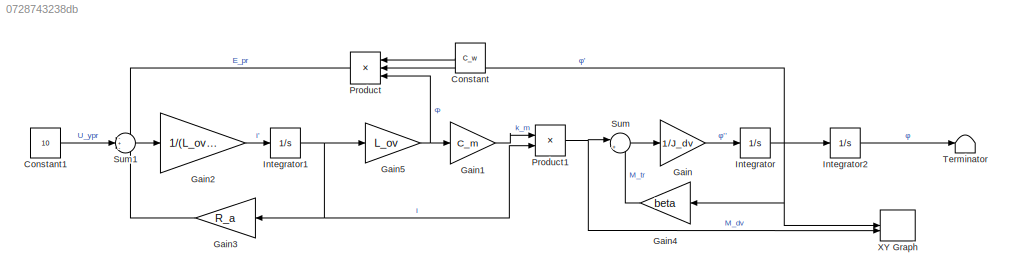
MODEL slx_0728743238db
KIND model
CONFIG AbsTol = auto
CONFIG EnableMultiTasking = off
CONFIG FixedStep = auto
CONFIG MaxStep = auto
CONFIG MinStep = auto
CONFIG RelTol = 1e-3
CONFIG SampleTimeConstraint = Unconstrained
CONFIG SolverName = VariableStepAuto
CONFIG StartTime = 0.0
CONFIG StopTime = 25
BLOCK [Constant] Constant
  NameLocation = top
  Value = C_w
BLOCK [Constant] Constant1
  Value = 10
BLOCK [Gain] Gain
  Gain = 1/J_dv
BLOCK [Gain] Gain1
  Gain = C_m
BLOCK [Gain] Gain2
  Gain = 1/(L_ov+L_a)
BLOCK [Gain] Gain3
  Gain = R_a
  NameLocation = top
BLOCK [Gain] Gain4
  Gain = beta
  NameLocation = top
BLOCK [Gain] Gain5
  Gain = L_ov
BLOCK [Integrator] Integrator
BLOCK [Integrator] Integrator1
BLOCK [Integrator] Integrator2
BLOCK [Product] Product
  Inputs = 3
  NameLocation = top
BLOCK [Product] Product1
BLOCK [Sum] Sum
  Inputs = |+-
BLOCK [Sum] Sum1
  Inputs = -+-
BLOCK [Terminator] Terminator
BLOCK [Record] XY Graph
  CompatibilityTag = XY
  FileSettingsInternal = {"entries":[{"content":{"excelSettings":{"content":{},"type":"Streamout.ExcelSettings"}},"type":"Streamout.FileSettingStorage","uuid":""}],"packageUris":["http:\/\/schema.mathworks.com\/mf0\/streamout_blocks\/R2020a"],"version":"1.0"}
  Layout = [1 1]
  SignalsInternal = {"entries":[{"content":{"signals":[{"content":{"blockPath":[],"dimensions":[1],"domain":"","lineColor":"#a2142f","plots":[1],"port":1,"sid":[""],"signalID":232,"signalName":"φ'"},"type":"RecordBlkView.Signal","uuid":""},{"content":{"blockPath":[],"dimensions":[1],"domain":"","lineColor":"#139fff","plots":[1],"port":2,"sid":[""],"signalID":236,"signalName":"M_dv"},"type":"RecordBlkView.Signal","uui...<+152ch>
  VisualizationBindings = {"xyplotplugin":{"info":[{"series":[{"bindingParametersList":[{"parameter":"X-Axis","signalID":232,"signalName":"φ'"},{"parameter":"Y-Axis","signalID":236,"signalName":"M_dv"}],"seriesID":46091}],"subplotID":1}]}}
LINE Constant1:1 -> Sum1:2
LINE Constant:1 -> Product:1
LINE Gain1:1 -> Product1:1
LINE Gain2:1 -> Integrator1:1
LINE Gain3:1 -> Sum1:3
LINE Gain4:1 -> Sum:2
NET Gain5:1 -> Gain1:1, Product:3
LINE Gain:1 -> Integrator:1
NET Integrator1:1 -> Gain3:1, Gain5:1, Product1:2
LINE Integrator2:1 -> Terminator:1
NET Integrator:1 -> Gain4:1, Integrator2:1, Product:2, XY Graph:1
NET Product1:1 -> Sum:1, XY Graph:2
LINE Product:1 -> Sum1:1
LINE Sum1:1 -> Gain2:1
LINE Sum:1 -> Gain:1
note: NET lines group one-source signal fan-out (src -> all destinations, sorted); 1:1 wires keep LINE
